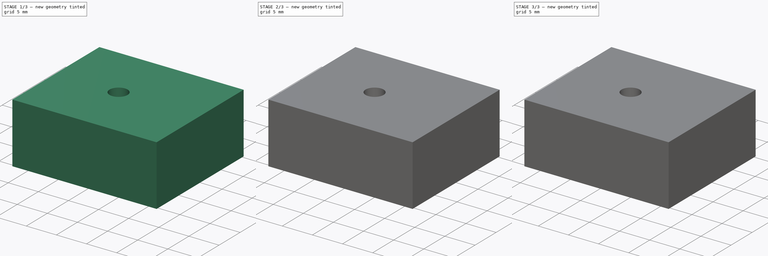
[diagram: build sequence overview — one tinted view per stage of 3, left to right]
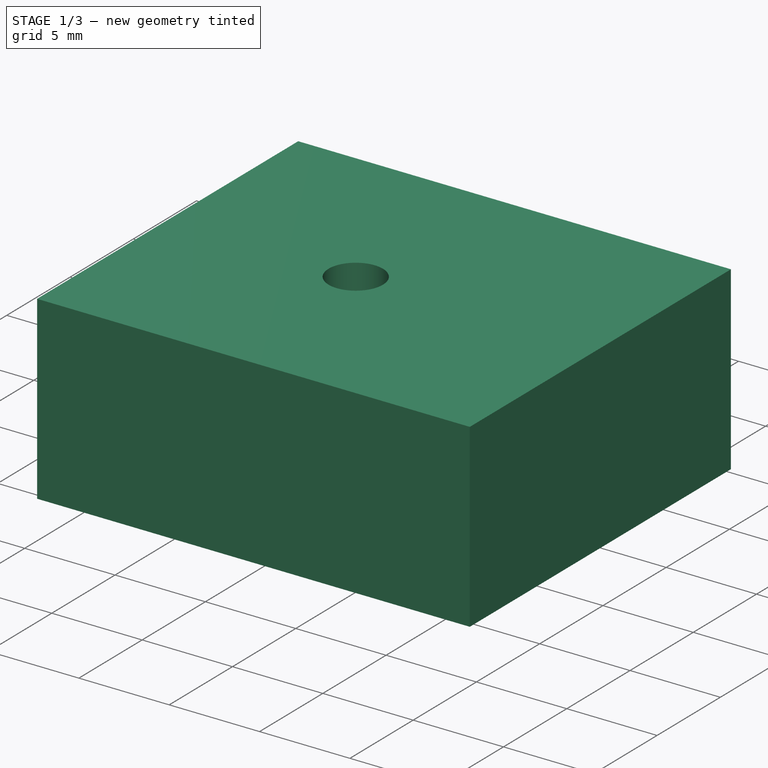
[diagram: stage 1 of 3 — iso view after this stage's code; geometry added in this stage tinted green]
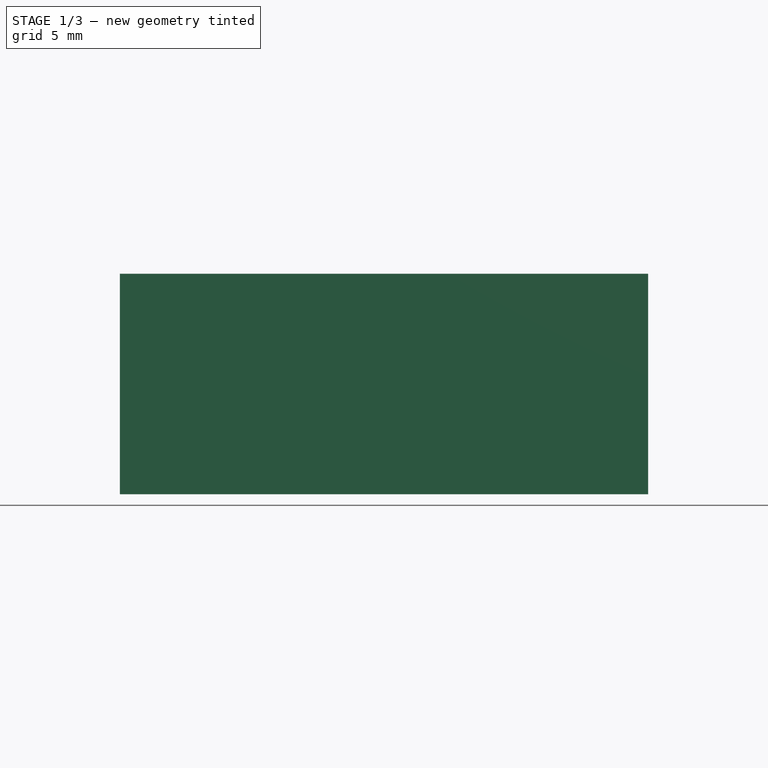
[diagram: stage 1 of 3 — front view after this stage's code; geometry added in this stage tinted green]
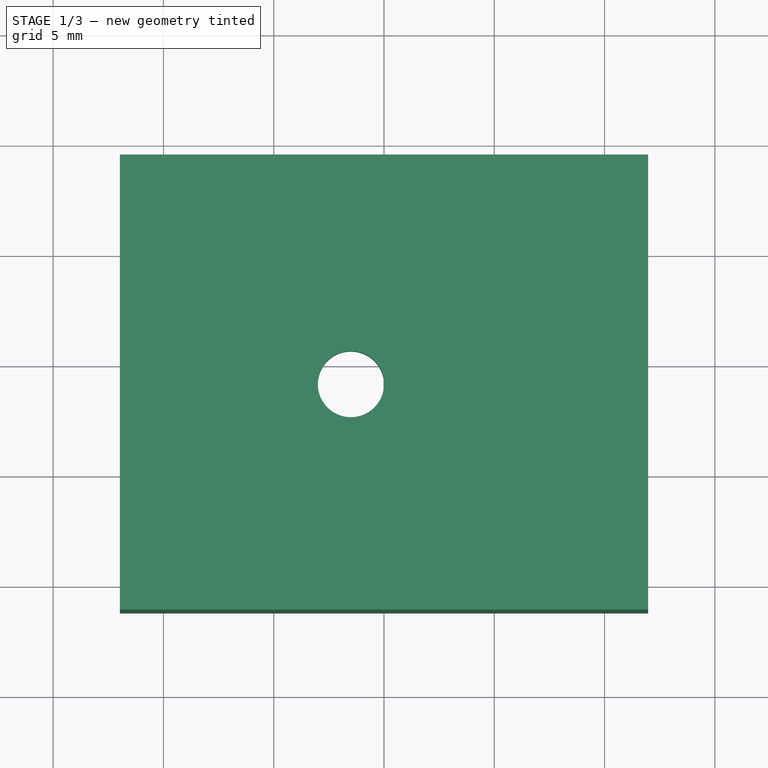
[diagram: stage 1 of 3 — top view after this stage's code; geometry added in this stage tinted green]
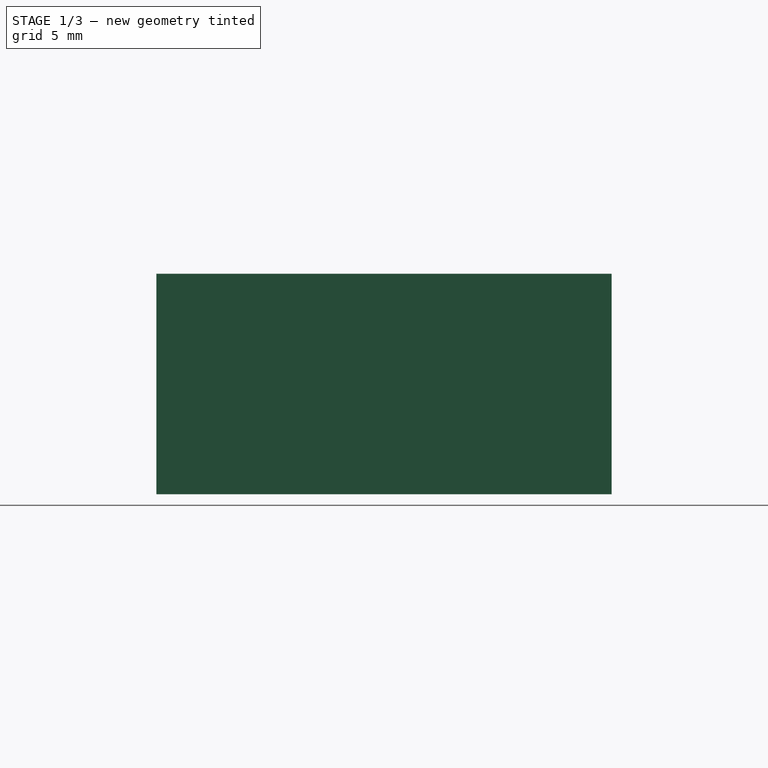
[diagram: stage 1 of 3 — right view after this stage's code; geometry added in this stage tinted green]
FCSTD DOCUMENT  (FreeCAD 0.21R33771 (Git))
Label: крепёж TB6612FNG
License: All rights reserved
LicenseURL: https://en.wikipedia.org/wiki/All_rights_reserved
objects: Sketcher::SketchObject×7, PartDesign::Pad×5, PartDesign::Pocket×2, PartDesign::Body×1
note: 22 computed .brp shape members not serialized (recipe doc carries the construction recipe); baked Part::Feature solids carry a one-line shape summary decoded from their .brp

FEATURE [Sketcher::SketchObject] Sketch
  FullyConstrained = true
  MapMode = 5
  Support = -> [XY_Plane]
  sketch-geometry (4):
    g0: LineSegment StartX=-10.575 StartY=18.24 StartZ=0 EndX=10.575 EndY=18.24 EndZ=0
    g1: LineSegment StartX=10.575 StartY=18.24 StartZ=0 EndX=10.575 EndY=0 EndZ=0
    g2: LineSegment StartX=10.575 StartY=0 StartZ=0 EndX=-10.575 EndY=0 EndZ=0
    g3: LineSegment StartX=-10.575 StartY=0 StartZ=0 EndX=-10.575 EndY=18.24 EndZ=0
  constraints (11):
    c: Coincident(g0,g1)
    c: Coincident(g1,g2)
    c: Coincident(g2,g3)
    c: Coincident(g3,g0)
    c: Horizontal(g0)
    c: Horizontal(g2)
    c: Vertical(g1)
    c: Vertical(g3)
    c: DistanceX(g0,g0) = 21.15
    c: DistanceY(g3,g3) = 18.24
    c: Symmetric(g2,g1,g-1)
FEATURE [Sketcher::SketchObject] Sketch001
  ExternalGeometry = -> [Sketch]
  FullyConstrained = true
  MapMode = 5
  Support = -> [XY_Plane]
  sketch-geometry (5):
    g0: LineSegment StartX=-11.975 StartY=19.44 StartZ=0 EndX=11.975 EndY=19.44 EndZ=0
    g1: LineSegment StartX=11.975 StartY=19.44 StartZ=0 EndX=11.975 EndY=-1.2 EndZ=0
    g2: LineSegment StartX=11.975 StartY=-1.2 StartZ=0 EndX=-11.975 EndY=-1.2 EndZ=0
    g3: LineSegment StartX=-11.975 StartY=-1.2 StartZ=0 EndX=-11.975 EndY=19.44 EndZ=0
    g4: Circle CenterX=-1.5 CenterY=9.03 CenterZ=0 NormalX=0 NormalY=0 NormalZ=1 AngleXU=0 Radius=1.5
  constraints (15):
    c: Coincident(g0,g1)
    c: Coincident(g1,g2)
    c: Coincident(g2,g3)
    c: Coincident(g3,g0)
    c: Horizontal(g0)
    c: Horizontal(g2)
    c: Vertical(g1)
    c: Vertical(g3)
    c: DistanceX(g0,g-4) = 1.4
    c: DistanceX(g-5,g0) = 1.4
    c: DistanceY(g-4,g0) = 1.2
    c: DistanceY(g2,g-3) = 1.2
    c: Tangent(g4,g-2)
    c: Diameter(g4) = 3
    c: DistanceY(g4,g-4) = 9.21
FEATURE [PartDesign::Pad] Pad
  Direction = (0,0,1)
  Length = 10
  Length2 = 10
  Profile = -> Sketch001
  ReferenceAxis = -> Sketch001 [N_Axis]
  Type = 0
FEATURE [PartDesign::Pocket] Pocket
  BaseFeature = -> Pad
  Direction = (0,0,-1)
  Length = 8
  Length2 = 5
  Profile = -> Sketch
  ReferenceAxis = -> Sketch [N_Axis]
  Reversed = true
  Type = 0
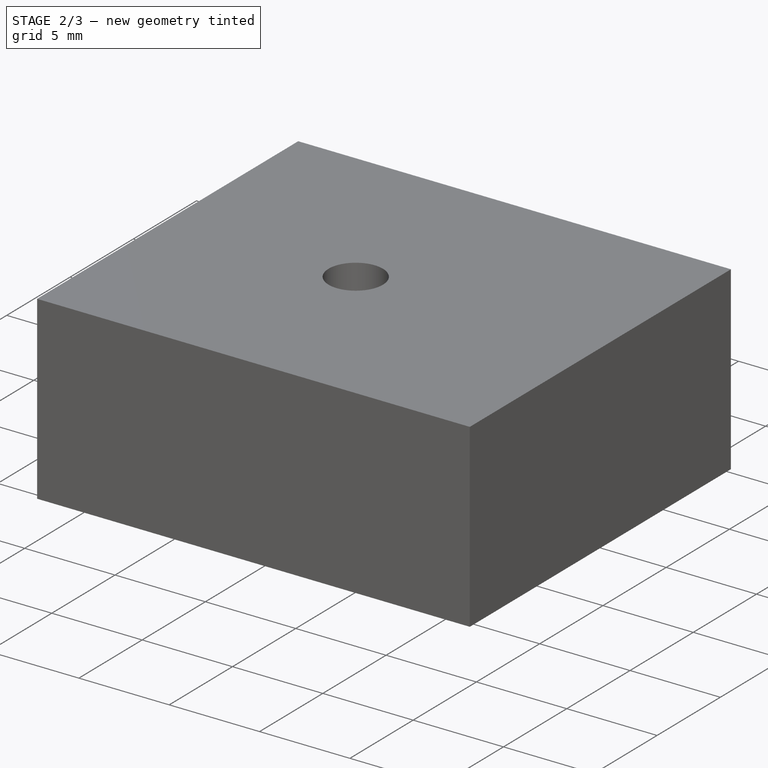
[diagram: stage 2 of 3 — iso view after this stage's code; geometry added in this stage tinted green]
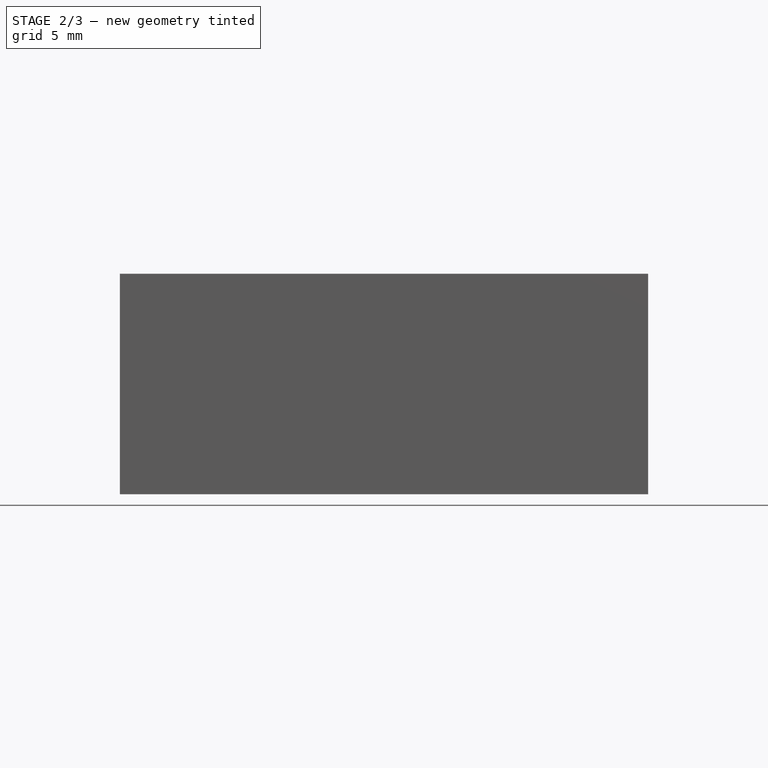
[diagram: stage 2 of 3 — front view after this stage's code; geometry added in this stage tinted green]
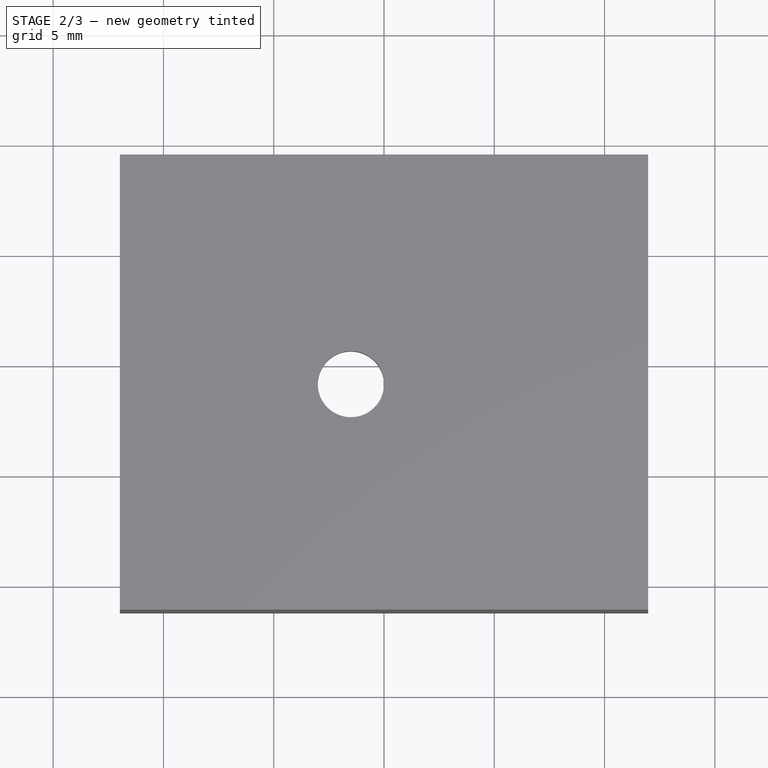
[diagram: stage 2 of 3 — top view after this stage's code; geometry added in this stage tinted green]
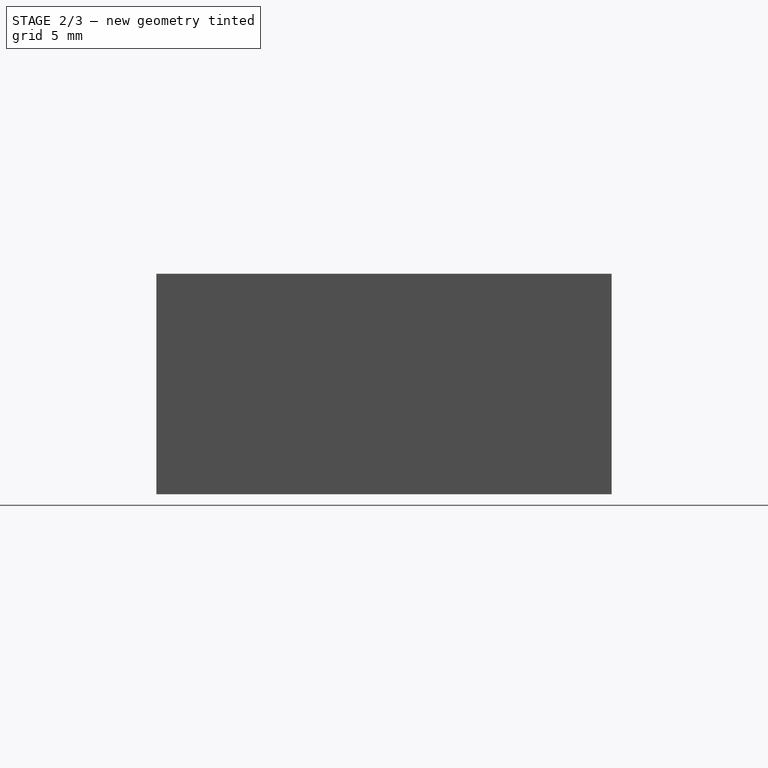
[diagram: stage 2 of 3 — right view after this stage's code; geometry added in this stage tinted green]
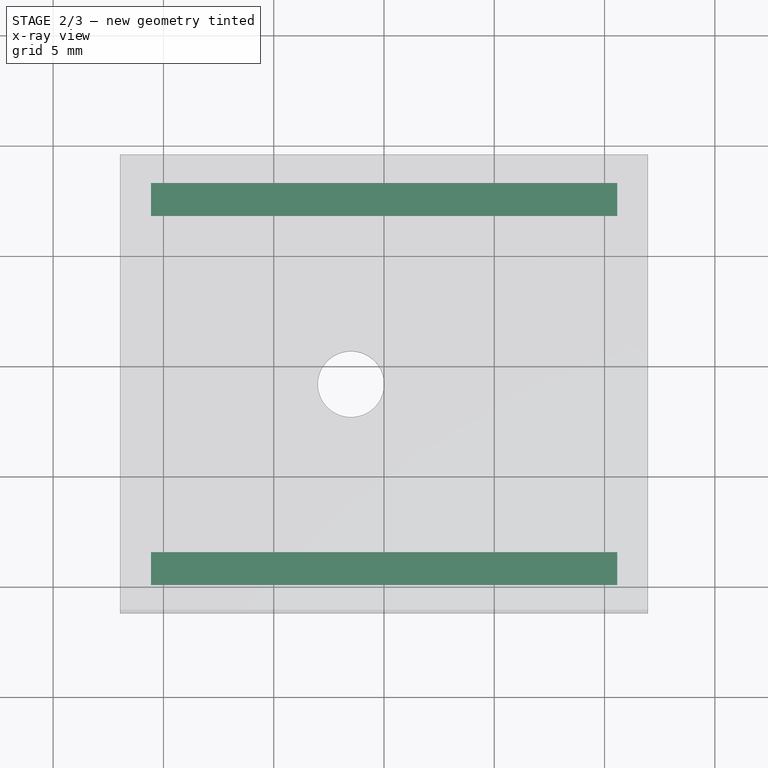
[diagram: stage 2 of 3 — x-ray composite at the top view; earlier geometry ghosted, this stage's added geometry solid]
FEATURE [Sketcher::SketchObject] Sketch002
  ExternalGeometry = -> [Pocket]
  FullyConstrained = true
  MapMode = 5
  Placement = pos=(0,0,0) rot=(0,0.707107,0.707107;3.14159rad)
  Support = -> [Pocket]
  sketch-geometry (4):
    g0: LineSegment StartX=10.575 StartY=3.75 StartZ=0 EndX=-10.575 EndY=3.75 EndZ=0
    g1: LineSegment StartX=-10.575 StartY=3.75 StartZ=0 EndX=-10.575 EndY=4.75 EndZ=0
    g2: LineSegment StartX=-10.575 StartY=4.75 StartZ=0 EndX=10.575 EndY=4.75 EndZ=0
    g3: LineSegment StartX=10.575 StartY=4.75 StartZ=0 EndX=10.575 EndY=3.75 EndZ=0
  constraints (12):
    c: Coincident(g0,g1)
    c: Coincident(g1,g2)
    c: Coincident(g2,g3)
    c: Coincident(g3,g0)
    c: Horizontal(g0)
    c: Horizontal(g2)
    c: Vertical(g1)
    c: Vertical(g3)
    c: Vertical(g0,g-3)
    c: Vertical(g0,g-5)
    c: DistanceY(g0,g2) = 1
    c: DistanceY(g2,g-4) = 3.25
FEATURE [PartDesign::Pad] Pad001
  BaseFeature = -> Pocket
  Direction = (0,1,-2e-16)
  Length = 1.5
  Length2 = 10
  Profile = -> Sketch002
  ReferenceAxis = -> Sketch002 [N_Axis]
  Type = 0
FEATURE [Sketcher::SketchObject] Sketch003
  ExternalGeometry = -> [Pad001]
  FullyConstrained = true
  MapMode = 5
  Placement = pos=(0,18.24,0) rot=(1,0,0;1.5708rad)
  Support = -> [Pad001]
  sketch-geometry (4):
    g0: LineSegment StartX=-10.575 StartY=4.75 StartZ=0 EndX=10.575 EndY=4.75 EndZ=0
    g1: LineSegment StartX=10.575 StartY=4.75 StartZ=0 EndX=10.575 EndY=3.75 EndZ=0
    g2: LineSegment StartX=10.575 StartY=3.75 StartZ=0 EndX=-10.575 EndY=3.75 EndZ=0
    g3: LineSegment StartX=-10.575 StartY=3.75 StartZ=0 EndX=-10.575 EndY=4.75 EndZ=0
  constraints (12):
    c: Coincident(g0,g1)
    c: Coincident(g1,g2)
    c: Coincident(g2,g3)
    c: Coincident(g3,g0)
    c: Horizontal(g0)
    c: Horizontal(g2)
    c: Vertical(g1)
    c: Vertical(g3)
    c: Vertical(g1,g-5)
    c: Vertical(g2,g-3)
    c: DistanceY(g0,g-4) = 3.25
    c: DistanceY(g2,g0) = 1
FEATURE [PartDesign::Pad] Pad002
  BaseFeature = -> Pad001
  Direction = (0,-1,2e-16)
  Length = 1.5
  Length2 = 10
  Profile = -> Sketch003
  ReferenceAxis = -> Sketch003 [N_Axis]
  Type = 0
FEATURE [Sketcher::SketchObject] Sketch004
  ExternalGeometry = -> [Pad002]
  FullyConstrained = true
  MapMode = 5
  Placement = pos=(0,18.24,0) rot=(1,0,0;1.5708rad)
  Support = -> [Pad002]
  sketch-geometry (4):
    g0: LineSegment StartX=10.575 StartY=2.2 StartZ=0 EndX=-10.575 EndY=2.2 EndZ=0
    g1: LineSegment StartX=-10.575 StartY=2.2 StartZ=0 EndX=-10.575 EndY=1.7 EndZ=0
    g2: LineSegment StartX=-10.575 StartY=1.7 StartZ=0 EndX=10.575 EndY=1.7 EndZ=0
    g3: LineSegment StartX=10.575 StartY=1.7 StartZ=0 EndX=10.575 EndY=2.2 EndZ=0
  constraints (12):
    c: Coincident(g0,g1)
    c: Coincident(g1,g2)
    c: Coincident(g2,g3)
    c: Coincident(g3,g0)
    c: Horizontal(g0)
    c: Horizontal(g2)
    c: Vertical(g1)
    c: Vertical(g3)
    c: Vertical(g2,g-4)
    c: Vertical(g0,g-5)
    c: DistanceY(g1,g0) = 0.5
    c: DistanceY(g0,g-4) = 1.55
FEATURE [PartDesign::Pad] Pad003
  BaseFeature = -> Pad002
  Direction = (0,-1,2e-16)
  Length = 0.5
  Length2 = 10
  Profile = -> Sketch004
  ReferenceAxis = -> Sketch004 [N_Axis]
  Type = 0
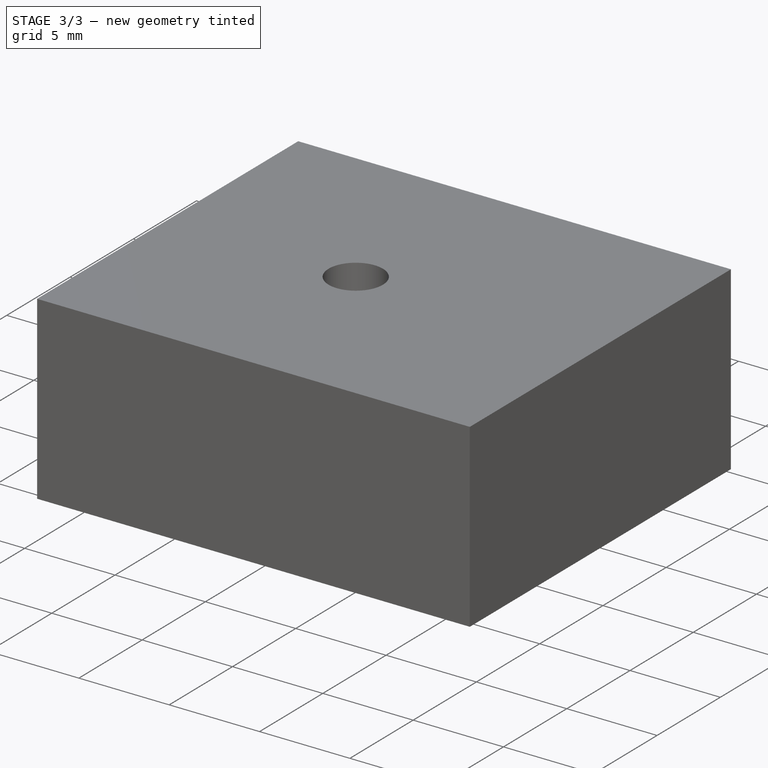
[diagram: stage 3 of 3 — iso view after this stage's code; geometry added in this stage tinted green]
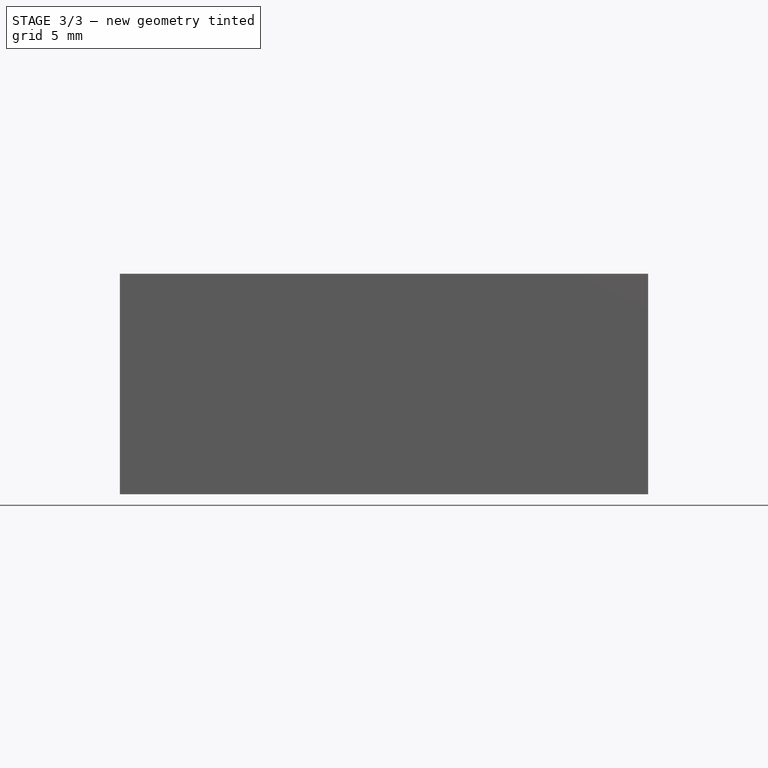
[diagram: stage 3 of 3 — front view after this stage's code; geometry added in this stage tinted green]
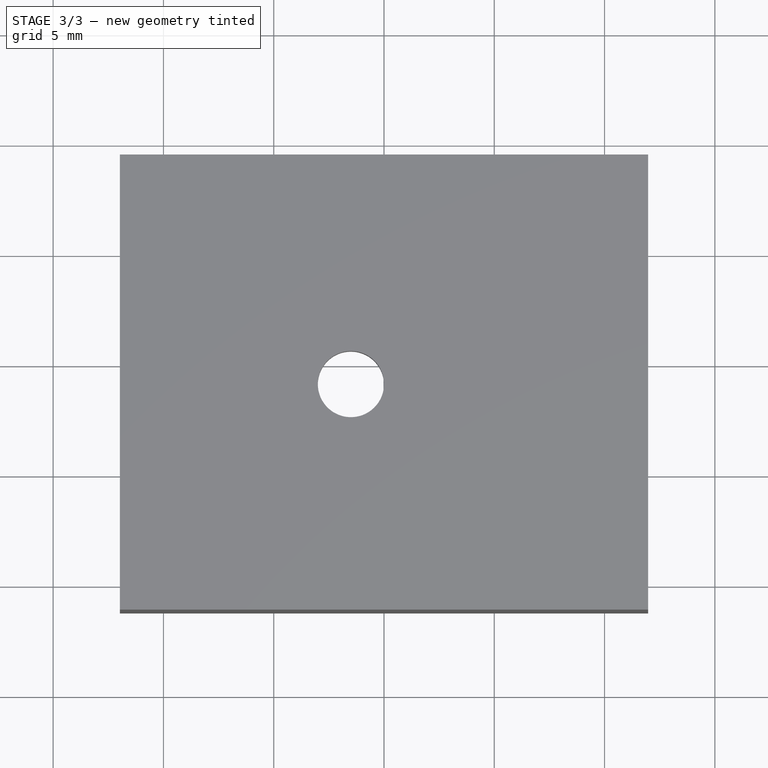
[diagram: stage 3 of 3 — top view after this stage's code; geometry added in this stage tinted green]
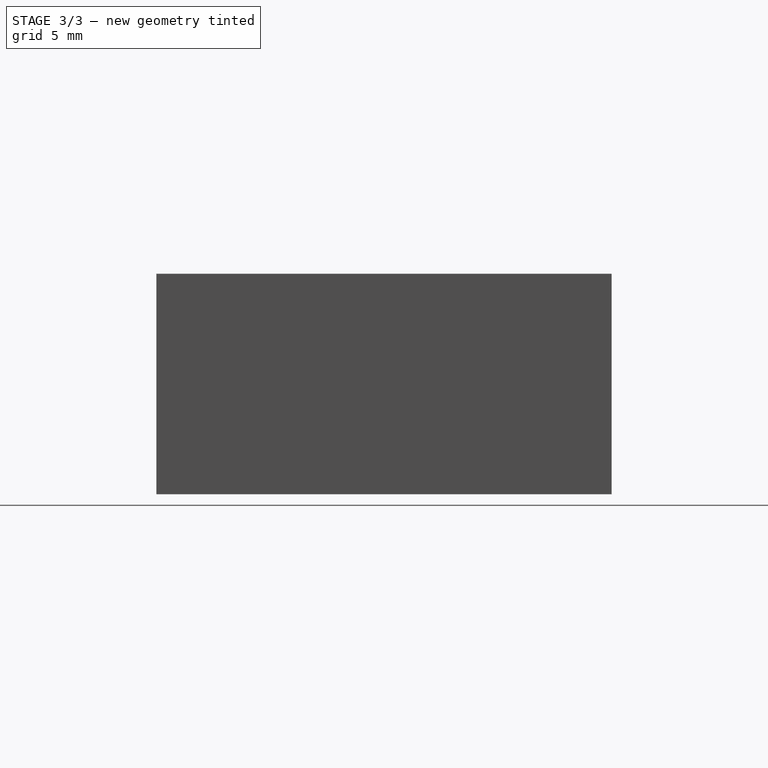
[diagram: stage 3 of 3 — right view after this stage's code; geometry added in this stage tinted green]
FEATURE [Sketcher::SketchObject] Sketch005
  ExternalGeometry = -> [Pad003]
  FullyConstrained = true
  MapMode = 5
  Placement = pos=(0,0,0) rot=(0,0.707107,0.707107;3.14159rad)
  Support = -> [Pad003]
  sketch-geometry (4):
    g0: LineSegment StartX=-10.575 StartY=2.2 StartZ=0 EndX=10.575 EndY=2.2 EndZ=0
    g1: LineSegment StartX=10.575 StartY=2.2 StartZ=0 EndX=10.575 EndY=1.7 EndZ=0
    g2: LineSegment StartX=10.575 StartY=1.7 StartZ=0 EndX=-10.575 EndY=1.7 EndZ=0
    g3: LineSegment StartX=-10.575 StartY=1.7 StartZ=0 EndX=-10.575 EndY=2.2 EndZ=0
  constraints (12):
    c: Coincident(g0,g1)
    c: Coincident(g1,g2)
    c: Coincident(g2,g3)
    c: Coincident(g3,g0)
    c: Horizontal(g0)
    c: Horizontal(g2)
    c: Vertical(g1)
    c: Vertical(g3)
    c: Vertical(g0,g-5)
    c: DistanceY(g0,g-5) = 1.55
    c: DistanceY(g1,g0) = 0.5
    c: Vertical(g0,g-4)
FEATURE [PartDesign::Pad] Pad004
  BaseFeature = -> Pad003
  Direction = (0,1,-2e-16)
  Length = 0.5
  Length2 = 10
  Profile = -> Sketch005
  ReferenceAxis = -> Sketch005 [N_Axis]
  Type = 0
FEATURE [Sketcher::SketchObject] Sketch006
  ExternalGeometry = -> [Pad004]
  FullyConstrained = true
  MapMode = 5
  Placement = pos=(-11.975,0,0) rot=(0.57735,-0.57735,-0.57735;2.0944rad)
  Support = -> [Pad004]
  sketch-geometry (4):
    g0: LineSegment StartX=-13.44 StartY=6 StartZ=0 EndX=-3.44 EndY=6 EndZ=0
    g1: LineSegment StartX=-3.44 StartY=6 StartZ=0 EndX=-3.44 EndY=0 EndZ=0
    g2: LineSegment StartX=-3.44 StartY=0 StartZ=0 EndX=-13.44 EndY=0 EndZ=0
    g3: LineSegment StartX=-13.44 StartY=0 StartZ=0 EndX=-13.44 EndY=6 EndZ=0
  constraints (12):
    c: Coincident(g0,g1)
    c: Coincident(g1,g2)
    c: Coincident(g2,g3)
    c: Coincident(g3,g0)
    c: Horizontal(g0)
    c: Horizontal(g2)
    c: Vertical(g1)
    c: Vertical(g3)
    c: Horizontal(g2,g-4)
    c: DistanceY(g2,g0) = 6
    c: DistanceX(g0,g0) = 10
    c: DistanceX(g-4,g2) = 6
FEATURE [PartDesign::Pocket] Pocket001
  BaseFeature = -> Pad004
  Direction = (1,0,0)
  Length = 5
  Length2 = 5
  Profile = -> Sketch006
  ReferenceAxis = -> Sketch006 [N_Axis]
  Type = 0
FEATURE [PartDesign::Body] Body
  Group = -> [Sketch,Sketch001,Pad,Pocket,Sketch002,Pad001,Sketch003,Pad002,Sketch004,Pad003,Sketch005,Pad004,Sketch006,Pocket001]
  Origin = -> Origin
  Tip = -> Pocket001
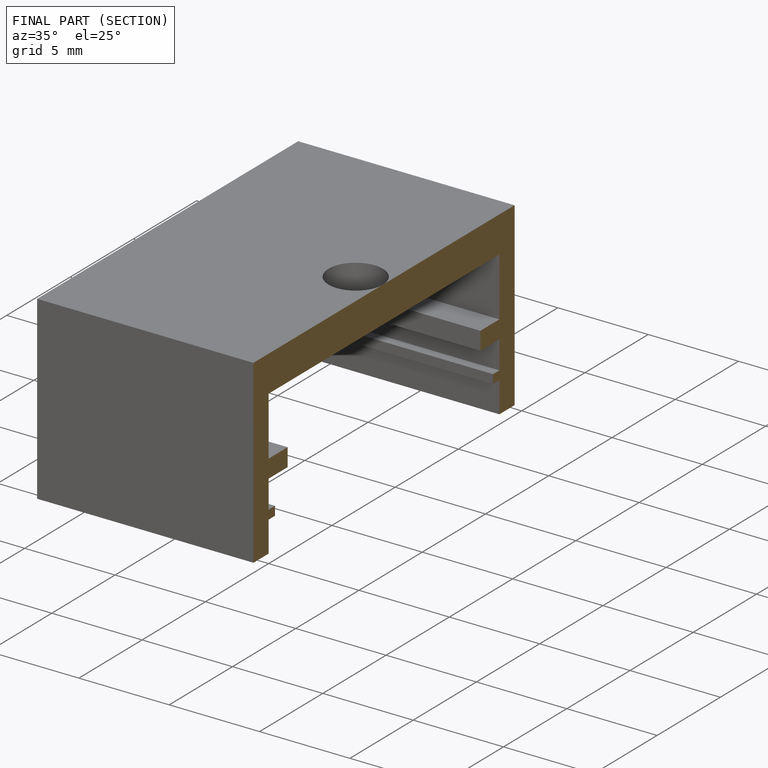
[diagram: finished part — half-section view (interior)]
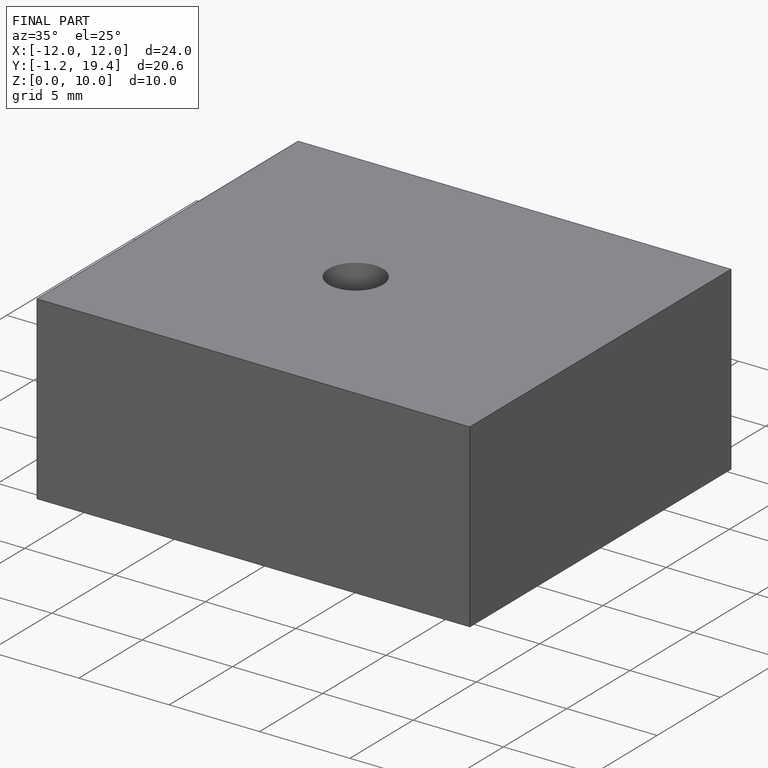
[diagram: finished part — iso view with bounding-box wireframe]
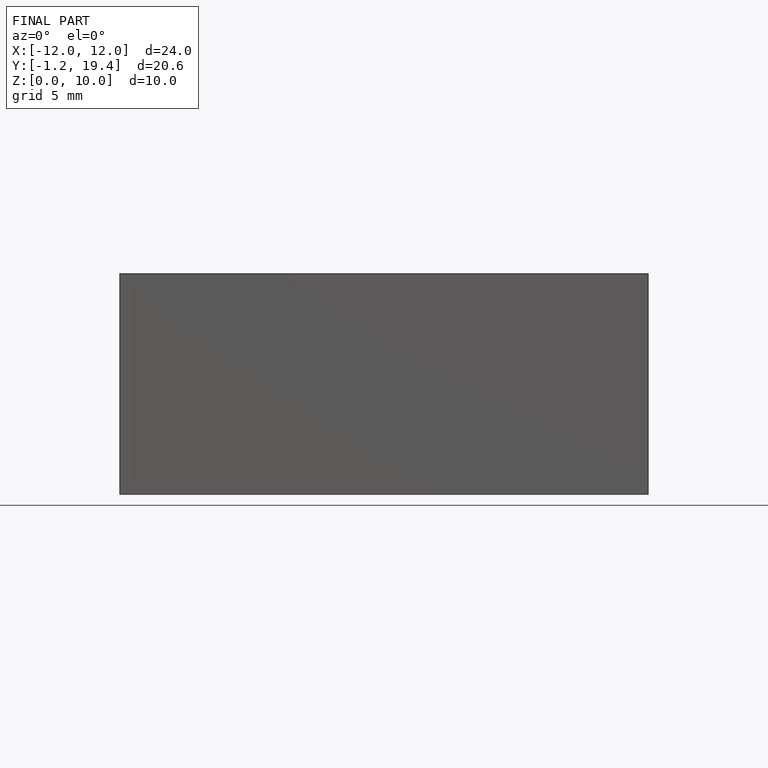
[diagram: finished part — front view with bounding-box wireframe]
